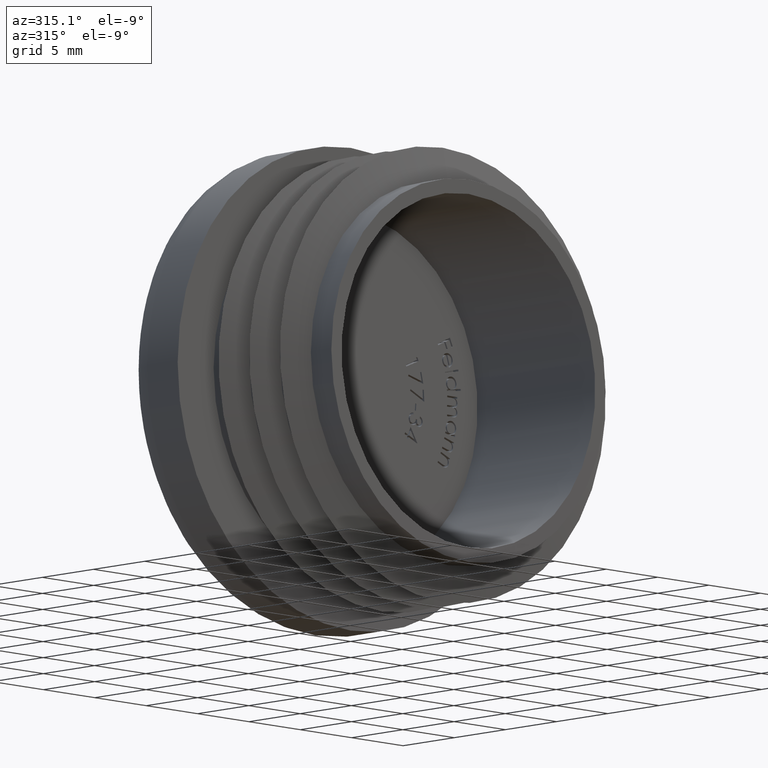
[diagram: clean part render]
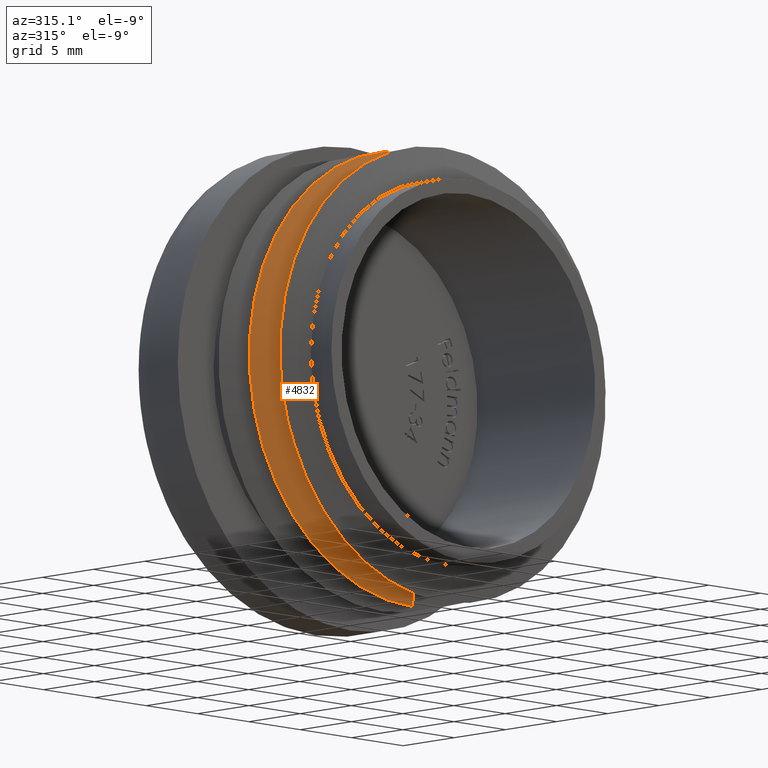
[diagram: same view with one face highlighted and labeled with its STEP entity id]
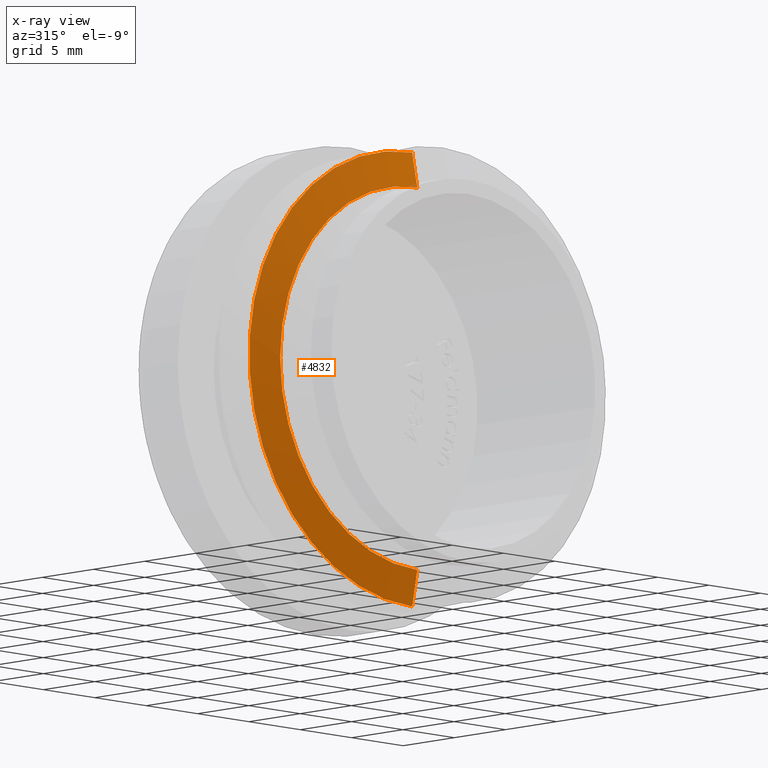
[diagram: x-ray of the same camera — body ghosted, the highlighted face saturated]
A machine part, auxiliary view. The second image highlights one B-rep face of the part: STEP entity #4832.
The next image is the same camera in x-ray: the body ghosted, the highlighted face saturated — about 0% of this face is hidden behind the body in this view.
In plain terms, the highlighted conical surface has half-angle 78.69 deg.
Its self-contained STEP definition (entity closure, byte-faithful):
#10 = ORIENTED_EDGE ( 'NONE', *, *, #2121, .T. ) ;
#281 = EDGE_CURVE ( 'NONE', #1396, #2836, #6584, .T. ) ;
#616 = DIRECTION ( 'NONE',  ( 0.0000000000000000000, 0.0000000000000000000, 1.000000000000000000 ) ) ;
#624 = DIRECTION ( 'NONE',  ( -0.0000000000000000000, 1.000000000000000000, -0.0000000000000000000 ) ) ;
#630 = CARTESIAN_POINT ( 'NONE',  ( 0.0000000000000000000, -6.500000000000000900, 0.0000000000000000000 ) ) ;
#692 = LINE ( 'NONE', #1195, #6486 ) ;
#1014 = VECTOR ( 'NONE', #2157, 999.9999999999998900 ) ;
#1165 = ORIENTED_EDGE ( 'NONE', *, *, #3116, .F. ) ;
#1195 = CARTESIAN_POINT ( 'NONE',  ( 0.0000000000000000000, -6.500000000000000900, 13.35000000000000000 ) ) ;
#1259 = VERTEX_POINT ( 'NONE', #5055 ) ;
#1396 = VERTEX_POINT ( 'NONE', #8012 ) ;
#1410 = CARTESIAN_POINT ( 'NONE',  ( 1.634903476861716400E-015, -6.500000000000000900, -13.35000000000000000 ) ) ;
#1453 = DIRECTION ( 'NONE',  ( 0.0000000000000000000, 0.1961161351381842400, 0.9805806756909202200 ) ) ;
#1927 = AXIS2_PLACEMENT_3D ( 'NONE', #6047, #6030, #6021 ) ;
#2054 = ORIENTED_EDGE ( 'NONE', *, *, #2061, .T. ) ;
#2061 = EDGE_CURVE ( 'NONE', #1259, #2836, #692, .T. ) ;
#2121 = EDGE_CURVE ( 'NONE', #7970, #1259, #4404, .T. ) ;
#2157 = DIRECTION ( 'NONE',  ( 1.200864985790634400E-016, 0.1961161351381842400, -0.9805806756909202200 ) ) ;
#2630 = ORIENTED_EDGE ( 'NONE', *, *, #281, .F. ) ;
#2680 = CONICAL_SURFACE ( 'NONE', #7751, 13.35000000000000000, 1.373400766945015700 ) ;
#2836 = VERTEX_POINT ( 'NONE', #7094 ) ;
#3116 = EDGE_CURVE ( 'NONE', #7970, #1396, #8272, .T. ) ;
#3217 = CARTESIAN_POINT ( 'NONE',  ( 1.634903476861716400E-015, -6.500000000000000900, -13.35000000000000000 ) ) ;
#3471 = EDGE_LOOP ( 'NONE', ( #1165, #10, #2054, #2630 ) ) ;
#3683 = CARTESIAN_POINT ( 'NONE',  ( 0.0000000000000000000, -6.500000000000000900, 0.0000000000000000000 ) ) ;
#3710 = DIRECTION ( 'NONE',  ( -0.0000000000000000000, 1.000000000000000000, -0.0000000000000000000 ) ) ;
#4404 = CIRCLE ( 'NONE', #6800, 13.35000000000000000 ) ;
#4832 = ADVANCED_FACE ( 'NONE', ( #6712 ), #2680, .T. ) ;
#5055 = CARTESIAN_POINT ( 'NONE',  ( 0.0000000000000000000, -6.500000000000000900, 13.35000000000000000 ) ) ;
#6021 = DIRECTION ( 'NONE',  ( 0.0000000000000000000, 0.0000000000000000000, 1.000000000000000000 ) ) ;
#6030 = DIRECTION ( 'NONE',  ( -0.0000000000000000000, 1.000000000000000000, -0.0000000000000000000 ) ) ;
#6047 = CARTESIAN_POINT ( 'NONE',  ( 0.0000000000000000000, -6.000000000000000000, 0.0000000000000000000 ) ) ;
#6486 = VECTOR ( 'NONE', #1453, 999.9999999999998900 ) ;
#6584 = CIRCLE ( 'NONE', #1927, 15.85000000000000000 ) ;
#6712 = FACE_OUTER_BOUND ( 'NONE', #3471, .T. ) ;
#6800 = AXIS2_PLACEMENT_3D ( 'NONE', #630, #624, #616 ) ;
#7094 = CARTESIAN_POINT ( 'NONE',  ( 0.0000000000000000000, -6.000000000000000000, 15.85000000000000000 ) ) ;
#7202 = DIRECTION ( 'NONE',  ( 0.0000000000000000000, 0.0000000000000000000, 1.000000000000000000 ) ) ;
#7751 = AXIS2_PLACEMENT_3D ( 'NONE', #3683, #3710, #7202 ) ;
#7970 = VERTEX_POINT ( 'NONE', #3217 ) ;
#8012 = CARTESIAN_POINT ( 'NONE',  ( 1.941065176648554700E-015, -6.000000000000000000, -15.85000000000000000 ) ) ;
#8272 = LINE ( 'NONE', #1410, #1014 ) ;